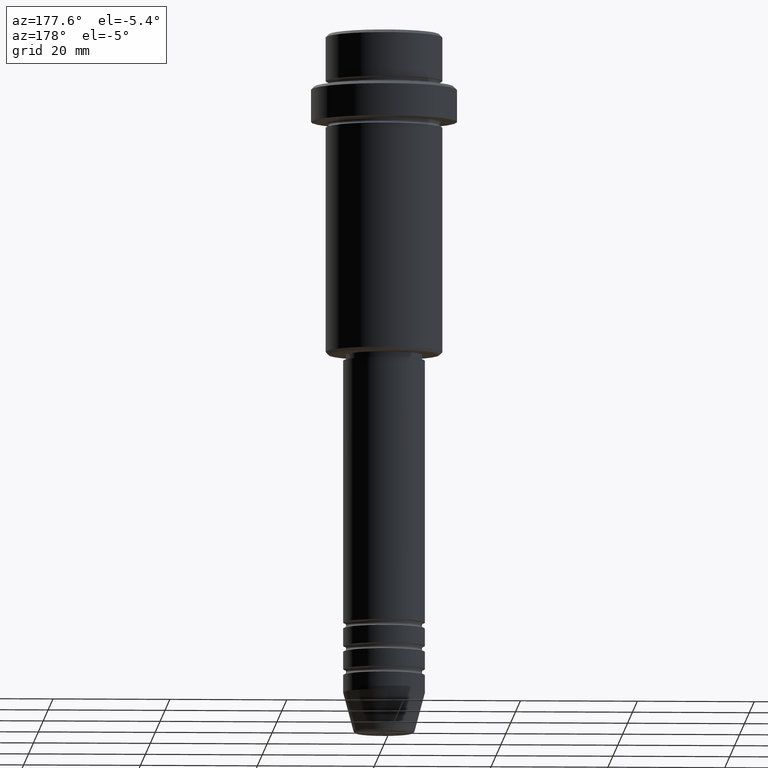
[diagram: clean part render]
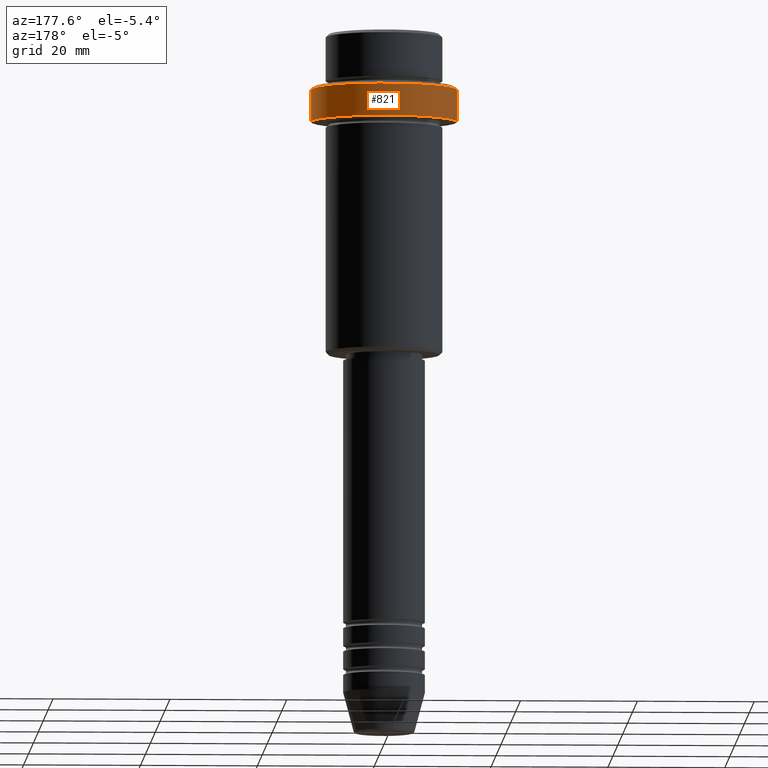
[diagram: same view with one face highlighted and labeled with its STEP entity id]
A machine part, auxiliary view. The second image highlights one B-rep face of the part: STEP entity #821.
In plain terms, the highlighted cylindrical surface (partial cylindrical patch) has radius 12.5 mm, axis along (-0, -0, 1).
Its self-contained STEP definition (entity closure, byte-faithful):
#20 = AXIS2_PLACEMENT_3D ( 'NONE', #902, #241, #680 ) ;
#59 = EDGE_LOOP ( 'NONE', ( #144, #845, #725, #1310 ) ) ;
#144 = ORIENTED_EDGE ( 'NONE', *, *, #1024, .T. ) ;
#151 = EDGE_CURVE ( 'NONE', #542, #236, #189, .T. ) ;
#189 = LINE ( 'NONE', #515, #626 ) ;
#198 = DIRECTION ( 'NONE',  ( -0.000000000000000000, -0.000000000000000000, 1.000000000000000000 ) ) ;
#206 = DIRECTION ( 'NONE',  ( -0.000000000000000000, -0.000000000000000000, 1.000000000000000000 ) ) ;
#211 = CARTESIAN_POINT ( 'NONE',  ( 12.50000000000000000, 0.000000000000000000, -15.00000000000000000 ) ) ;
#212 = EDGE_CURVE ( 'NONE', #1200, #236, #761, .T. ) ;
#236 = VERTEX_POINT ( 'NONE', #1301 ) ;
#241 = DIRECTION ( 'NONE',  ( -0.000000000000000000, -0.000000000000000000, 1.000000000000000000 ) ) ;
#288 = DIRECTION ( 'NONE',  ( -0.000000000000000000, -0.000000000000000000, 1.000000000000000000 ) ) ;
#324 = CARTESIAN_POINT ( 'NONE',  ( -12.50000000000000000, 1.530808498934191521E-15, -15.00000000000000000 ) ) ;
#393 = DIRECTION ( 'NONE',  ( 1.000000000000000000, 0.000000000000000000, 0.000000000000000000 ) ) ;
#435 = LINE ( 'NONE', #764, #530 ) ;
#453 = CARTESIAN_POINT ( 'NONE',  ( 0.000000000000000000, 0.000000000000000000, -9.500000000000031974 ) ) ;
#515 = CARTESIAN_POINT ( 'NONE',  ( 12.50000000000000000, 0.000000000000000000, 0.000000000000000000 ) ) ;
#530 = VECTOR ( 'NONE', #206, 1000.000000000000000 ) ;
#542 = VERTEX_POINT ( 'NONE', #211 ) ;
#594 = CARTESIAN_POINT ( 'NONE',  ( -12.50000000000000000, 1.530808498934191521E-15, -9.500000000000031974 ) ) ;
#626 = VECTOR ( 'NONE', #288, 1000.000000000000000 ) ;
#680 = DIRECTION ( 'NONE',  ( 1.000000000000000000, 0.000000000000000000, 0.000000000000000000 ) ) ;
#725 = ORIENTED_EDGE ( 'NONE', *, *, #212, .T. ) ;
#761 = CIRCLE ( 'NONE', #937, 12.50000000000000000 ) ;
#764 = CARTESIAN_POINT ( 'NONE',  ( -12.50000000000000000, 1.530808498934191521E-15, 0.000000000000000000 ) ) ;
#821 = ADVANCED_FACE ( 'NONE', ( #1115 ), #1222, .T. ) ;
#845 = ORIENTED_EDGE ( 'NONE', *, *, #1390, .T. ) ;
#849 = DIRECTION ( 'NONE',  ( 1.000000000000000000, 0.000000000000000000, 0.000000000000000000 ) ) ;
#902 = CARTESIAN_POINT ( 'NONE',  ( 0.000000000000000000, 0.000000000000000000, 0.000000000000000000 ) ) ;
#937 = AXIS2_PLACEMENT_3D ( 'NONE', #453, #1308, #849 ) ;
#1008 = VERTEX_POINT ( 'NONE', #324 ) ;
#1024 = EDGE_CURVE ( 'NONE', #542, #1008, #1178, .T. ) ;
#1115 = FACE_OUTER_BOUND ( 'NONE', #59, .T. ) ;
#1174 = CARTESIAN_POINT ( 'NONE',  ( 0.000000000000000000, 0.000000000000000000, -15.00000000000000000 ) ) ;
#1178 = CIRCLE ( 'NONE', #1314, 12.50000000000000000 ) ;
#1200 = VERTEX_POINT ( 'NONE', #594 ) ;
#1222 = CYLINDRICAL_SURFACE ( 'NONE', #20, 12.50000000000000000 ) ;
#1301 = CARTESIAN_POINT ( 'NONE',  ( 12.50000000000000000, 0.000000000000000000, -9.500000000000031974 ) ) ;
#1308 = DIRECTION ( 'NONE',  ( 0.000000000000000000, 0.000000000000000000, -1.000000000000000000 ) ) ;
#1310 = ORIENTED_EDGE ( 'NONE', *, *, #151, .F. ) ;
#1314 = AXIS2_PLACEMENT_3D ( 'NONE', #1174, #198, #393 ) ;
#1390 = EDGE_CURVE ( 'NONE', #1008, #1200, #435, .T. ) ;